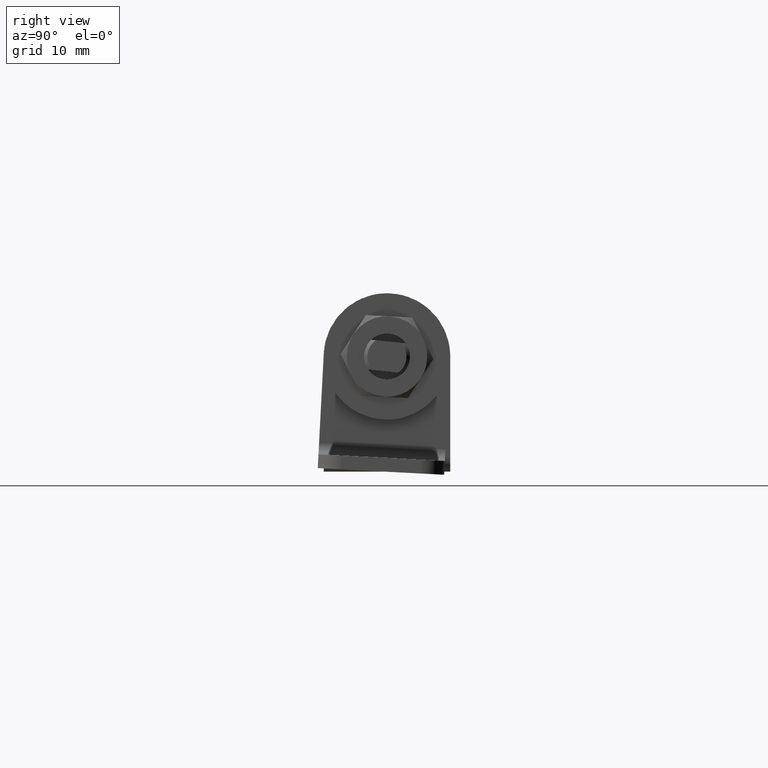
[diagram: clean part render]
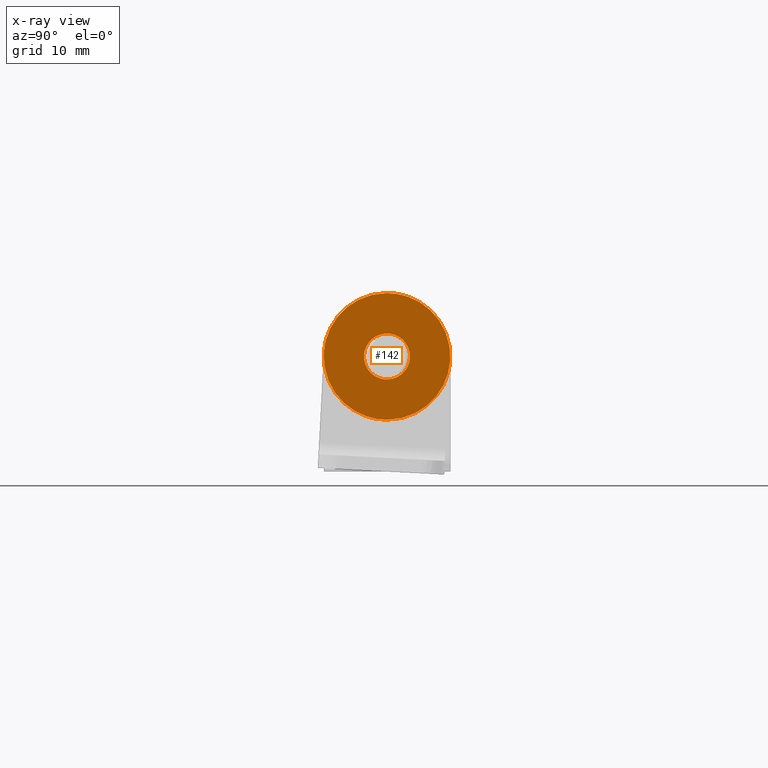
[diagram: x-ray — body ghosted, one internal face saturated and labeled with its STEP entity id]
A machine part, right view, then the same camera in x-ray: the body is ghosted and one INTERNAL B-rep face — a face not visible from any outside direction — is saturated and labeled: STEP entity #142.
In plain terms, the highlighted face is a freeform B-spline surface patch.
Its self-contained STEP definition (entity closure, byte-faithful):
#5=CARTESIAN_POINT('',(2.400000000000090,-6.047771243257755,6.049449978678272));
#6=CARTESIAN_POINT('',(2.400000000000090,6.047771439952855,6.049449978678272));
#7=CARTESIAN_POINT('',(2.400000000000090,-6.047771243257755,-6.049450273724276));
#8=CARTESIAN_POINT('',(2.400000000000090,6.047771439952855,-6.049450273724276));
#9=B_SPLINE_SURFACE_WITH_KNOTS('',1,1,((#5,#7),(#6,#8)),.UNSPECIFIED.,.F.,.F.,.U.,(2,2),(2,2),(0.0,12.095542683210610),(0.0,12.098900252402551),.UNSPECIFIED.);
#10=CARTESIAN_POINT('',(2.400000000000180,5.483045335526332,-0.431525026576795));
#11=VERTEX_POINT('',#10);
#12=CARTESIAN_POINT('',(2.400000000000180,-1.136868E-013,5.499999999998414));
#13=VERTEX_POINT('',#12);
#14=CARTESIAN_POINT('',(2.400000000000180,5.483045335526332,-0.431525026576795));
#15=CARTESIAN_POINT('',(2.400000000000179,5.499999999999806,-0.216095588579928));
#16=CARTESIAN_POINT('',(2.400000000000180,5.499999999999806,-1.506351E-012));
#17=CARTESIAN_POINT('',(2.400000000000179,5.499999999999806,5.499999999998414));
#18=CARTESIAN_POINT('',(2.400000000000180,-1.136868E-013,5.499999999998414));
#26=(BOUNDED_CURVE()B_SPLINE_CURVE(2,(#14,#15,#16,#17,#18),.UNSPECIFIED.,.F.,.U.)B_SPLINE_CURVE_WITH_KNOTS((3,2,3),(0.736331300630511,0.750000000000000,1.0),.UNSPECIFIED.)CURVE()GEOMETRIC_REPRESENTATION_ITEM()RATIONAL_B_SPLINE_CURVE((0.969723356167108,0.983986122578708,1.0,0.707106781186548,1.0))REPRESENTATION_ITEM(''));
#27=EDGE_CURVE('',#11,#13,#26,.T.);
#28=ORIENTED_EDGE('',*,*,#27,.F.);
#29=CARTESIAN_POINT('',(2.400000000000180,-1.136868E-013,-5.500000000001426));
#30=VERTEX_POINT('',#29);
#31=CARTESIAN_POINT('',(2.400000000000180,-1.136868E-013,-5.500000000001426));
#32=CARTESIAN_POINT('',(2.400000000000180,5.084147704052846,-5.500000000001427));
#33=CARTESIAN_POINT('',(2.400000000000180,5.483045335526332,-0.431525026576795));
#41=(BOUNDED_CURVE()B_SPLINE_CURVE(2,(#31,#32,#33),.UNSPECIFIED.,.F.,.U.)B_SPLINE_CURVE_WITH_KNOTS((3,3),(0.500000000000000,0.736331300630511),.UNSPECIFIED.)CURVE()GEOMETRIC_REPRESENTATION_ITEM()RATIONAL_B_SPLINE_CURVE((1.0,0.723120658607839,0.969723356167108))REPRESENTATION_ITEM(''));
#42=EDGE_CURVE('',#30,#11,#41,.T.);
#43=ORIENTED_EDGE('',*,*,#42,.F.);
#44=CARTESIAN_POINT('',(2.400000000000180,-5.483045335526559,0.431525026573782));
#45=VERTEX_POINT('',#44);
#46=CARTESIAN_POINT('',(2.400000000000180,-5.483045335526559,0.431525026573782));
#47=CARTESIAN_POINT('',(2.400000000000179,-5.500000000000034,0.216095588576915));
#48=CARTESIAN_POINT('',(2.400000000000180,-5.500000000000034,-1.506351E-012));
#49=CARTESIAN_POINT('',(2.400000000000179,-5.500000000000035,-5.500000000001426));
#50=CARTESIAN_POINT('',(2.400000000000180,-1.136868E-013,-5.500000000001426));
#58=(BOUNDED_CURVE()B_SPLINE_CURVE(2,(#46,#47,#48,#49,#50),.UNSPECIFIED.,.F.,.U.)B_SPLINE_CURVE_WITH_KNOTS((3,2,3),(0.236331300630511,0.250000000000000,0.500000000000000),.UNSPECIFIED.)CURVE()GEOMETRIC_REPRESENTATION_ITEM()RATIONAL_B_SPLINE_CURVE((0.969723356167108,0.983986122578708,1.0,0.707106781186548,1.0))REPRESENTATION_ITEM(''));
#59=EDGE_CURVE('',#45,#30,#58,.T.);
#60=ORIENTED_EDGE('',*,*,#59,.F.);
#61=CARTESIAN_POINT('',(2.400000000000180,-1.136868E-013,5.499999999998414));
#62=CARTESIAN_POINT('',(2.400000000000180,-5.084147704053073,5.499999999998414));
#63=CARTESIAN_POINT('',(2.400000000000180,-5.483045335526559,0.431525026573782));
#71=(BOUNDED_CURVE()B_SPLINE_CURVE(2,(#61,#62,#63),.UNSPECIFIED.,.F.,.U.)B_SPLINE_CURVE_WITH_KNOTS((3,3),(0.0,0.236331300630511),.UNSPECIFIED.)CURVE()GEOMETRIC_REPRESENTATION_ITEM()RATIONAL_B_SPLINE_CURVE((1.0,0.723120658607839,0.969723356167108))REPRESENTATION_ITEM(''));
#72=EDGE_CURVE('',#13,#45,#71,.T.);
#73=ORIENTED_EDGE('',*,*,#72,.F.);
#74=EDGE_LOOP('',(#28,#43,#60,#73));
#75=FACE_OUTER_BOUND('',#74,.T.);
#76=CARTESIAN_POINT('',(2.400000000000180,0.0,-1.999999999999860));
#77=VERTEX_POINT('',#76);
#78=CARTESIAN_POINT('',(2.400000000000180,1.993834667464556,-0.156918191475497));
#79=VERTEX_POINT('',#78);
#80=CARTESIAN_POINT('',(2.400000000000180,0.0,-1.999999999999860));
#81=CARTESIAN_POINT('',(2.400000000000180,1.848780983297852,-1.999999999999861));
#82=CARTESIAN_POINT('',(2.400000000000180,1.993834667464557,-0.156918191475497));
#90=(BOUNDED_CURVE()B_SPLINE_CURVE(2,(#80,#81,#82),.UNSPECIFIED.,.F.,.U.)B_SPLINE_CURVE_WITH_KNOTS((3,3),(0.500000000000000,0.736331300631063),.UNSPECIFIED.)CURVE()GEOMETRIC_REPRESENTATION_ITEM()RATIONAL_B_SPLINE_CURVE((1.0,0.723120658607193,0.969723356168260))REPRESENTATION_ITEM(''));
#91=EDGE_CURVE('',#77,#79,#90,.T.);
#92=ORIENTED_EDGE('',*,*,#91,.T.);
#93=CARTESIAN_POINT('',(2.400000000000180,0.0,1.999999999999860));
#94=VERTEX_POINT('',#93);
#95=CARTESIAN_POINT('',(2.400000000000180,1.993834667464557,-0.156918191475497));
#96=CARTESIAN_POINT('',(2.400000000000180,1.999999999999860,-0.078580214025289));
#97=CARTESIAN_POINT('',(2.400000000000180,1.999999999999860,0.0));
#98=CARTESIAN_POINT('',(2.400000000000180,1.999999999999860,1.999999999999860));
#99=CARTESIAN_POINT('',(2.400000000000180,0.0,1.999999999999860));
#107=(BOUNDED_CURVE()B_SPLINE_CURVE(2,(#95,#96,#97,#98,#99),.UNSPECIFIED.,.F.,.U.)B_SPLINE_CURVE_WITH_KNOTS((3,2,3),(0.736331300631063,0.750000000000000,1.0),.UNSPECIFIED.)CURVE()GEOMETRIC_REPRESENTATION_ITEM()RATIONAL_B_SPLINE_CURVE((0.969723356168260,0.983986122579355,1.0,0.707106781186547,1.0))REPRESENTATION_ITEM(''));
#108=EDGE_CURVE('',#79,#94,#107,.T.);
#109=ORIENTED_EDGE('',*,*,#108,.T.);
#110=CARTESIAN_POINT('',(2.400000000000180,-1.993834667464556,0.156918191475497));
#111=VERTEX_POINT('',#110);
#112=CARTESIAN_POINT('',(2.400000000000180,0.0,1.999999999999860));
#113=CARTESIAN_POINT('',(2.400000000000179,-1.848780983297851,1.999999999999860));
#114=CARTESIAN_POINT('',(2.400000000000180,-1.993834667464556,0.156918191475498));
#122=(BOUNDED_CURVE()B_SPLINE_CURVE(2,(#112,#113,#114),.UNSPECIFIED.,.F.,.U.)B_SPLINE_CURVE_WITH_KNOTS((3,3),(0.0,0.236331300631063),.UNSPECIFIED.)CURVE()GEOMETRIC_REPRESENTATION_ITEM()RATIONAL_B_SPLINE_CURVE((1.0,0.723120658607193,0.969723356168259))REPRESENTATION_ITEM(''));
#123=EDGE_CURVE('',#94,#111,#122,.T.);
#124=ORIENTED_EDGE('',*,*,#123,.T.);
#125=CARTESIAN_POINT('',(2.400000000000180,-1.993834667464556,0.156918191475497));
#126=CARTESIAN_POINT('',(2.400000000000180,-1.999999999999860,0.078580214025289));
#127=CARTESIAN_POINT('',(2.400000000000180,-1.999999999999860,0.0));
#128=CARTESIAN_POINT('',(2.400000000000180,-1.999999999999860,-1.999999999999860));
#129=CARTESIAN_POINT('',(2.400000000000180,0.0,-1.999999999999860));
#137=(BOUNDED_CURVE()B_SPLINE_CURVE(2,(#125,#126,#127,#128,#129),.UNSPECIFIED.,.F.,.U.)B_SPLINE_CURVE_WITH_KNOTS((3,2,3),(0.236331300631063,0.250000000000000,0.500000000000000),.UNSPECIFIED.)CURVE()GEOMETRIC_REPRESENTATION_ITEM()RATIONAL_B_SPLINE_CURVE((0.969723356168259,0.983986122579354,1.0,0.707106781186547,1.0))REPRESENTATION_ITEM(''));
#138=EDGE_CURVE('',#111,#77,#137,.T.);
#139=ORIENTED_EDGE('',*,*,#138,.T.);
#140=EDGE_LOOP('',(#92,#109,#124,#139));
#141=FACE_BOUND('',#140,.T.);
#142=ADVANCED_FACE('',(#75,#141),#9,.T.);